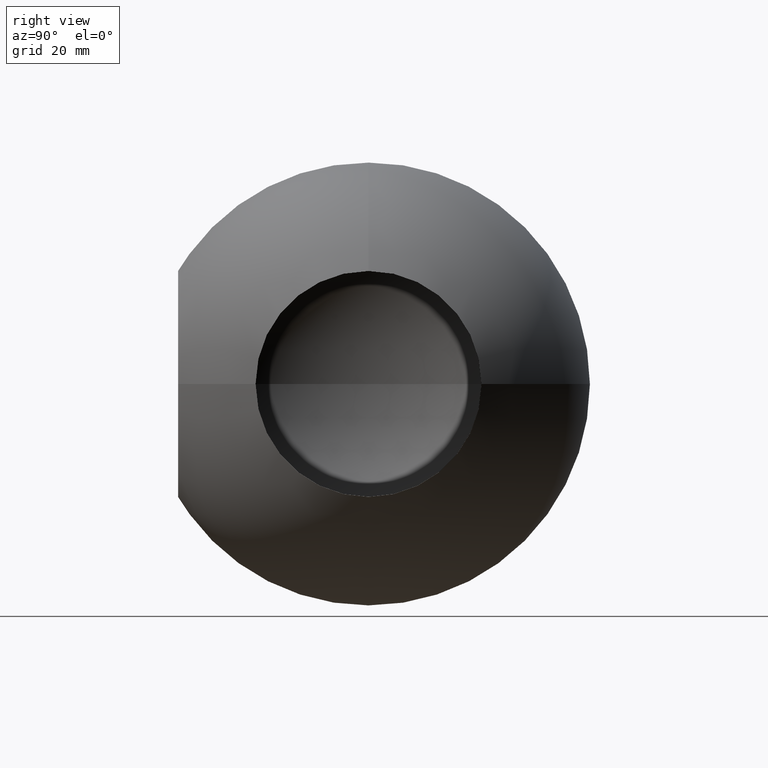
[diagram: clean part render]
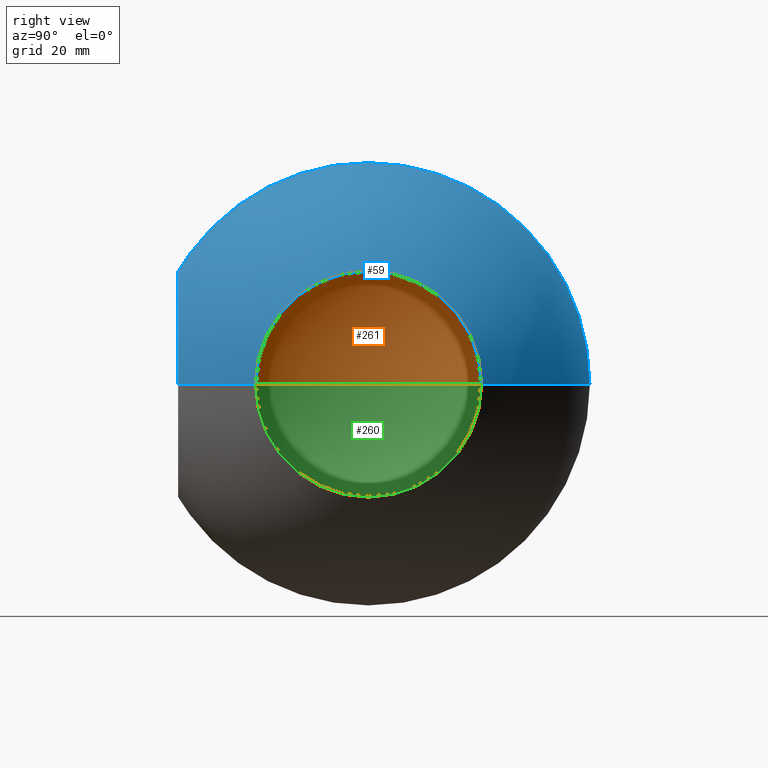
[diagram: same view with three faces highlighted in distinct colors, each labeled with its STEP entity id]
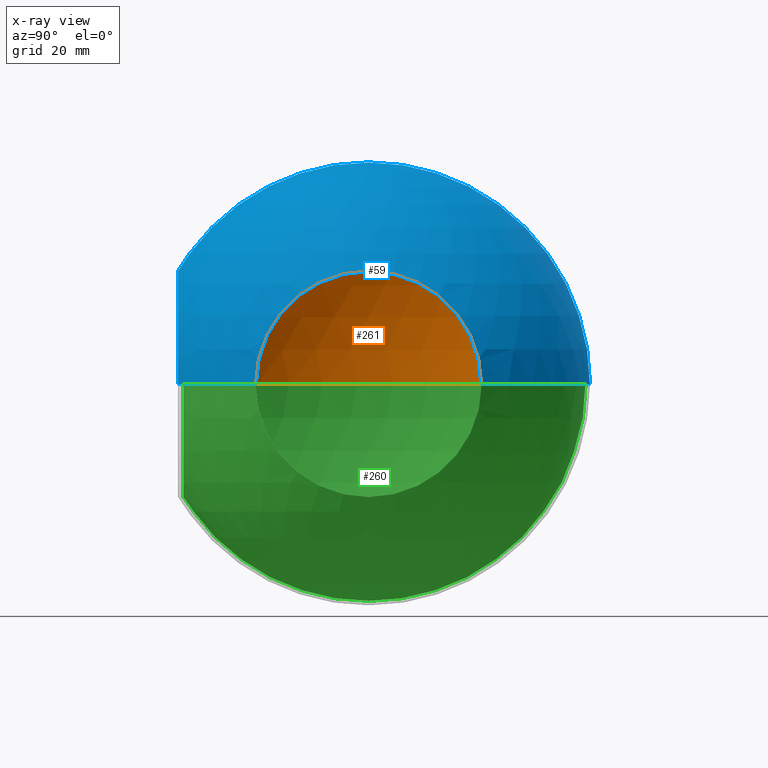
[diagram: x-ray of the same camera — body ghosted, the three highlighted faces saturated]
A machine part, right view with three faces highlighted in distinct colors.
The next image is the same camera in x-ray (body ghosted, the three faces saturated) — at least one of them is partly hidden behind the body in this view.
Their STEP definitions:

[orange] entity #261 — the highlighted spherical surface has radius 49 mm.
#3 = DIRECTION ( 'NONE',  ( 0.0000000000000000000, 1.000000000000000000, 0.0000000000000000000 ) ) ;
#7 = VERTEX_POINT ( 'NONE', #237 ) ;
#11 = DIRECTION ( 'NONE',  ( 0.0000000000000000000, -8.881784197001251300E-016, 1.000000000000000000 ) ) ;
#23 = DIRECTION ( 'NONE',  ( 0.0000000000000000000, 0.0000000000000000000, 1.000000000000000000 ) ) ;
#24 = CARTESIAN_POINT ( 'NONE',  ( 0.0000000000000000000, 0.0000000000000000000, 0.0000000000000000000 ) ) ;
#31 = DIRECTION ( 'NONE',  ( 1.000000000000000000, 0.0000000000000000000, 0.0000000000000000000 ) ) ;
#33 = EDGE_CURVE ( 'NONE', #275, #208, #129, .T. ) ;
#41 = AXIS2_PLACEMENT_3D ( 'NONE', #24, #53, #308 ) ;
#45 = VERTEX_POINT ( 'NONE', #243 ) ;
#53 = DIRECTION ( 'NONE',  ( 0.0000000000000000000, 0.0000000000000000000, 1.000000000000000000 ) ) ;
#60 = CARTESIAN_POINT ( 'NONE',  ( 0.0000000000000000000, 0.0000000000000000000, 0.0000000000000000000 ) ) ;
#67 = AXIS2_PLACEMENT_3D ( 'NONE', #346, #182, #11 ) ;
#69 = ORIENTED_EDGE ( 'NONE', *, *, #210, .T. ) ;
#70 = ORIENTED_EDGE ( 'NONE', *, *, #158, .F. ) ;
#76 = CIRCLE ( 'NONE', #67, 25.50000000000000000 ) ;
#77 = CARTESIAN_POINT ( 'NONE',  ( 0.0000000000000000000, -41.84196458102798700, 0.0000000000000000000 ) ) ;
#82 = DIRECTION ( 'NONE',  ( 0.0000000000000000000, 1.000000000000000000, 0.0000000000000000000 ) ) ;
#84 = DIRECTION ( 'NONE',  ( 1.000000000000000000, 0.0000000000000000000, 0.0000000000000000000 ) ) ;
#88 = CIRCLE ( 'NONE', #150, 49.00000000000000000 ) ;
#89 = CARTESIAN_POINT ( 'NONE',  ( 3.000384657911015500E-015, 49.00000000000000000, 0.0000000000000000000 ) ) ;
#95 = AXIS2_PLACEMENT_3D ( 'NONE', #112, #3, #23 ) ;
#97 = ORIENTED_EDGE ( 'NONE', *, *, #324, .T. ) ;
#99 = AXIS2_PLACEMENT_3D ( 'NONE', #60, #204, #31 ) ;
#102 = CARTESIAN_POINT ( 'NONE',  ( 25.50000000000000000, -41.84196458102798700, 0.0000000000000000000 ) ) ;
#104 = CARTESIAN_POINT ( 'NONE',  ( 41.84196458102798700, -1.075493846998870700E-014, 25.50000000000000000 ) ) ;
#112 = CARTESIAN_POINT ( 'NONE',  ( 0.0000000000000000000, -41.84196458102798700, 0.0000000000000000000 ) ) ;
#116 = AXIS2_PLACEMENT_3D ( 'NONE', #199, #304, #84 ) ;
#122 = VERTEX_POINT ( 'NONE', #104 ) ;
#129 = CIRCLE ( 'NONE', #217, 25.50000000000000000 ) ;
#133 = CARTESIAN_POINT ( 'NONE',  ( 3.122849337825750200E-015, -41.84196458102798700, 25.50000000000000000 ) ) ;
#146 = EDGE_CURVE ( 'NONE', #170, #122, #76, .T. ) ;
#148 = FACE_OUTER_BOUND ( 'NONE', #264, .T. ) ;
#150 = AXIS2_PLACEMENT_3D ( 'NONE', #168, #313, #253 ) ;
#151 = CIRCLE ( 'NONE', #116, 49.00000000000000000 ) ;
#158 = EDGE_CURVE ( 'NONE', #208, #7, #350, .T. ) ;
#168 = CARTESIAN_POINT ( 'NONE',  ( 0.0000000000000000000, 0.0000000000000000000, 0.0000000000000000000 ) ) ;
#170 = VERTEX_POINT ( 'NONE', #278 ) ;
#182 = DIRECTION ( 'NONE',  ( 1.000000000000000000, -0.0000000000000000000, -0.0000000000000000000 ) ) ;
#184 = SPHERICAL_SURFACE ( 'NONE', #99, 49.00000000000000000 ) ;
#192 = DIRECTION ( 'NONE',  ( 1.000000000000000000, -0.0000000000000000000, -0.0000000000000000000 ) ) ;
#196 = ORIENTED_EDGE ( 'NONE', *, *, #321, .F. ) ;
#199 = CARTESIAN_POINT ( 'NONE',  ( 0.0000000000000000000, 0.0000000000000000000, 0.0000000000000000000 ) ) ;
#204 = DIRECTION ( 'NONE',  ( 0.0000000000000000000, 0.0000000000000000000, -1.000000000000000000 ) ) ;
#208 = VERTEX_POINT ( 'NONE', #102 ) ;
#210 = EDGE_CURVE ( 'NONE', #45, #213, #88, .T. ) ;
#213 = VERTEX_POINT ( 'NONE', #89 ) ;
#217 = AXIS2_PLACEMENT_3D ( 'NONE', #77, #82, #218 ) ;
#218 = DIRECTION ( 'NONE',  ( 0.0000000000000000000, 0.0000000000000000000, 1.000000000000000000 ) ) ;
#225 = EDGE_CURVE ( 'NONE', #45, #275, #354, .T. ) ;
#237 = CARTESIAN_POINT ( 'NONE',  ( 41.84196458102798700, -25.50000000000000400, 0.0000000000000000000 ) ) ;
#243 = CARTESIAN_POINT ( 'NONE',  ( -25.50000000000000000, -41.84196458102798700, -3.122849337825750200E-015 ) ) ;
#250 = ORIENTED_EDGE ( 'NONE', *, *, #146, .T. ) ;
#253 = DIRECTION ( 'NONE',  ( -1.000000000000000000, 0.0000000000000000000, -1.224646799147353200E-016 ) ) ;
#255 = AXIS2_PLACEMENT_3D ( 'NONE', #277, #192, #306 ) ;
#261 = ADVANCED_FACE ( 'NONE', ( #148 ), #184, .F. ) ;
#264 = EDGE_LOOP ( 'NONE', ( #325, #69, #196, #250, #97, #70, #274 ) ) ;
#274 = ORIENTED_EDGE ( 'NONE', *, *, #33, .F. ) ;
#275 = VERTEX_POINT ( 'NONE', #133 ) ;
#277 = CARTESIAN_POINT ( 'NONE',  ( 41.84196458102798700, -1.387778780781445700E-014, 0.0000000000000000000 ) ) ;
#278 = CARTESIAN_POINT ( 'NONE',  ( 41.84196458102798700, 25.49999999999999300, 0.0000000000000000000 ) ) ;
#289 = CIRCLE ( 'NONE', #255, 25.50000000000000000 ) ;
#304 = DIRECTION ( 'NONE',  ( 0.0000000000000000000, 0.0000000000000000000, 1.000000000000000000 ) ) ;
#306 = DIRECTION ( 'NONE',  ( 0.0000000000000000000, 0.0000000000000000000, 1.000000000000000000 ) ) ;
#308 = DIRECTION ( 'NONE',  ( 1.000000000000000000, 0.0000000000000000000, 0.0000000000000000000 ) ) ;
#313 = DIRECTION ( 'NONE',  ( 1.224646799147353200E-016, 0.0000000000000000000, -1.000000000000000000 ) ) ;
#321 = EDGE_CURVE ( 'NONE', #170, #213, #151, .T. ) ;
#324 = EDGE_CURVE ( 'NONE', #122, #7, #289, .T. ) ;
#325 = ORIENTED_EDGE ( 'NONE', *, *, #225, .F. ) ;
#346 = CARTESIAN_POINT ( 'NONE',  ( 41.84196458102798700, -1.387778780781445700E-014, 0.0000000000000000000 ) ) ;
#350 = CIRCLE ( 'NONE', #41, 49.00000000000000000 ) ;
#354 = CIRCLE ( 'NONE', #95, 25.50000000000000000 ) ;

[blue] entity #59 — the highlighted spherical surface has radius 50 mm.
#9 = DIRECTION ( 'NONE',  ( 0.0000000000000000000, -8.881784197001251300E-016, 1.000000000000000000 ) ) ;
#10 = ORIENTED_EDGE ( 'NONE', *, *, #311, .F. ) ;
#17 = CIRCLE ( 'NONE', #314, 25.50000000000000000 ) ;
#21 = AXIS2_PLACEMENT_3D ( 'NONE', #107, #136, #248 ) ;
#22 = DIRECTION ( 'NONE',  ( -1.000000000000000000, 0.0000000000000000000, -1.224646799147353200E-016 ) ) ;
#32 = VERTEX_POINT ( 'NONE', #214 ) ;
#38 = CARTESIAN_POINT ( 'NONE',  ( 43.00872004605578500, -1.387778780781445700E-014, 0.0000000000000000000 ) ) ;
#42 = VERTEX_POINT ( 'NONE', #296 ) ;
#46 = EDGE_CURVE ( 'NONE', #32, #42, #165, .T. ) ;
#56 = DIRECTION ( 'NONE',  ( 0.0000000000000000000, 0.0000000000000000000, 1.000000000000000000 ) ) ;
#59 = ADVANCED_FACE ( 'NONE', ( #230 ), #206, .T. ) ;
#63 = AXIS2_PLACEMENT_3D ( 'NONE', #149, #90, #283 ) ;
#73 = DIRECTION ( 'NONE',  ( 0.0000000000000000000, 0.0000000000000000000, 1.000000000000000000 ) ) ;
#75 = ORIENTED_EDGE ( 'NONE', *, *, #125, .T. ) ;
#83 = AXIS2_PLACEMENT_3D ( 'NONE', #38, #240, #73 ) ;
#90 = DIRECTION ( 'NONE',  ( 0.0000000000000000000, 0.0000000000000000000, 1.000000000000000000 ) ) ;
#93 = ORIENTED_EDGE ( 'NONE', *, *, #46, .T. ) ;
#94 = VERTEX_POINT ( 'NONE', #353 ) ;
#101 = VERTEX_POINT ( 'NONE', #191 ) ;
#105 = CIRCLE ( 'NONE', #63, 50.00000000000000000 ) ;
#107 = CARTESIAN_POINT ( 'NONE',  ( 0.0000000000000000000, -43.00872004605578500, 0.0000000000000000000 ) ) ;
#109 = DIRECTION ( 'NONE',  ( 1.000000000000000000, 0.0000000000000000000, 0.0000000000000000000 ) ) ;
#120 = ORIENTED_EDGE ( 'NONE', *, *, #339, .F. ) ;
#125 = EDGE_CURVE ( 'NONE', #287, #256, #134, .T. ) ;
#128 = CIRCLE ( 'NONE', #319, 25.50000000000000000 ) ;
#134 = CIRCLE ( 'NONE', #21, 25.50000000000000000 ) ;
#136 = DIRECTION ( 'NONE',  ( 0.0000000000000000000, 1.000000000000000000, 0.0000000000000000000 ) ) ;
#149 = CARTESIAN_POINT ( 'NONE',  ( 0.0000000000000000000, 0.0000000000000000000, 0.0000000000000000000 ) ) ;
#157 = AXIS2_PLACEMENT_3D ( 'NONE', #329, #271, #220 ) ;
#164 = DIRECTION ( 'NONE',  ( 1.000000000000000000, -0.0000000000000000000, -0.0000000000000000000 ) ) ;
#165 = CIRCLE ( 'NONE', #157, 50.00000000000000000 ) ;
#166 = DIRECTION ( 'NONE',  ( 0.0000000000000000000, 0.0000000000000000000, -1.000000000000000000 ) ) ;
#172 = CARTESIAN_POINT ( 'NONE',  ( 3.122849337825750200E-015, -43.00872004605578500, 25.50000000000000000 ) ) ;
#173 = DIRECTION ( 'NONE',  ( 0.0000000000000000000, 1.000000000000000000, 0.0000000000000000000 ) ) ;
#177 = AXIS2_PLACEMENT_3D ( 'NONE', #273, #166, #109 ) ;
#188 = ORIENTED_EDGE ( 'NONE', *, *, #290, .F. ) ;
#191 = CARTESIAN_POINT ( 'NONE',  ( 43.00872004605578500, -1.075493846998870700E-014, 25.50000000000000000 ) ) ;
#195 = DIRECTION ( 'NONE',  ( 1.224646799147353200E-016, 0.0000000000000000000, -1.000000000000000000 ) ) ;
#200 = CARTESIAN_POINT ( 'NONE',  ( 0.0000000000000000000, -43.00872004605578500, 0.0000000000000000000 ) ) ;
#206 = SPHERICAL_SURFACE ( 'NONE', #177, 50.00000000000000000 ) ;
#214 = CARTESIAN_POINT ( 'NONE',  ( 43.00872004605578500, 25.49999999999998900, 0.0000000000000000000 ) ) ;
#220 = DIRECTION ( 'NONE',  ( 1.000000000000000000, 0.0000000000000000000, 0.0000000000000000000 ) ) ;
#223 = CARTESIAN_POINT ( 'NONE',  ( 0.0000000000000000000, 0.0000000000000000000, 0.0000000000000000000 ) ) ;
#230 = FACE_OUTER_BOUND ( 'NONE', #323, .T. ) ;
#234 = CIRCLE ( 'NONE', #242, 50.00000000000000000 ) ;
#236 = EDGE_CURVE ( 'NONE', #94, #287, #17, .T. ) ;
#240 = DIRECTION ( 'NONE',  ( 1.000000000000000000, -0.0000000000000000000, -0.0000000000000000000 ) ) ;
#242 = AXIS2_PLACEMENT_3D ( 'NONE', #223, #195, #22 ) ;
#245 = ORIENTED_EDGE ( 'NONE', *, *, #257, .T. ) ;
#248 = DIRECTION ( 'NONE',  ( 0.0000000000000000000, 0.0000000000000000000, 1.000000000000000000 ) ) ;
#256 = VERTEX_POINT ( 'NONE', #282 ) ;
#257 = EDGE_CURVE ( 'NONE', #256, #330, #105, .T. ) ;
#269 = CARTESIAN_POINT ( 'NONE',  ( 43.00872004605578500, -1.387778780781445700E-014, 0.0000000000000000000 ) ) ;
#271 = DIRECTION ( 'NONE',  ( 0.0000000000000000000, 0.0000000000000000000, 1.000000000000000000 ) ) ;
#273 = CARTESIAN_POINT ( 'NONE',  ( 0.0000000000000000000, 0.0000000000000000000, 0.0000000000000000000 ) ) ;
#282 = CARTESIAN_POINT ( 'NONE',  ( 25.49999999999999600, -43.00872004605578500, 0.0000000000000000000 ) ) ;
#283 = DIRECTION ( 'NONE',  ( 1.000000000000000000, 0.0000000000000000000, 0.0000000000000000000 ) ) ;
#287 = VERTEX_POINT ( 'NONE', #172 ) ;
#290 = EDGE_CURVE ( 'NONE', #32, #101, #128, .T. ) ;
#296 = CARTESIAN_POINT ( 'NONE',  ( 3.061616997868383000E-015, 50.00000000000000000, 0.0000000000000000000 ) ) ;
#299 = CARTESIAN_POINT ( 'NONE',  ( 43.00872004605578500, -25.50000000000000400, 0.0000000000000000000 ) ) ;
#300 = ORIENTED_EDGE ( 'NONE', *, *, #236, .T. ) ;
#311 = EDGE_CURVE ( 'NONE', #101, #330, #322, .T. ) ;
#314 = AXIS2_PLACEMENT_3D ( 'NONE', #200, #173, #56 ) ;
#319 = AXIS2_PLACEMENT_3D ( 'NONE', #269, #164, #9 ) ;
#322 = CIRCLE ( 'NONE', #83, 25.50000000000000000 ) ;
#323 = EDGE_LOOP ( 'NONE', ( #120, #300, #75, #245, #10, #188, #93 ) ) ;
#329 = CARTESIAN_POINT ( 'NONE',  ( 0.0000000000000000000, 0.0000000000000000000, 0.0000000000000000000 ) ) ;
#330 = VERTEX_POINT ( 'NONE', #299 ) ;
#339 = EDGE_CURVE ( 'NONE', #94, #42, #234, .T. ) ;
#353 = CARTESIAN_POINT ( 'NONE',  ( -25.49999999999999600, -43.00872004605578500, -3.122849337825750200E-015 ) ) ;

[green] entity #260 — the highlighted spherical surface has radius 49 mm.
#1 = ORIENTED_EDGE ( 'NONE', *, *, #179, .T. ) ;
#4 = ORIENTED_EDGE ( 'NONE', *, *, #158, .T. ) ;
#5 = AXIS2_PLACEMENT_3D ( 'NONE', #328, #26, #28 ) ;
#7 = VERTEX_POINT ( 'NONE', #237 ) ;
#8 = EDGE_CURVE ( 'NONE', #208, #318, #205, .T. ) ;
#12 = CARTESIAN_POINT ( 'NONE',  ( 41.84196458102798700, -1.387778780781445700E-014, -25.50000000000000000 ) ) ;
#15 = DIRECTION ( 'NONE',  ( 0.0000000000000000000, 0.0000000000000000000, 1.000000000000000000 ) ) ;
#24 = CARTESIAN_POINT ( 'NONE',  ( 0.0000000000000000000, 0.0000000000000000000, 0.0000000000000000000 ) ) ;
#26 = DIRECTION ( 'NONE',  ( 0.0000000000000000000, 0.0000000000000000000, -1.000000000000000000 ) ) ;
#27 = AXIS2_PLACEMENT_3D ( 'NONE', #130, #160, #351 ) ;
#28 = DIRECTION ( 'NONE',  ( 1.000000000000000000, 0.0000000000000000000, 0.0000000000000000000 ) ) ;
#29 = EDGE_CURVE ( 'NONE', #318, #45, #340, .T. ) ;
#40 = CARTESIAN_POINT ( 'NONE',  ( 41.84196458102798700, -1.387778780781445700E-014, 0.0000000000000000000 ) ) ;
#41 = AXIS2_PLACEMENT_3D ( 'NONE', #24, #53, #308 ) ;
#45 = VERTEX_POINT ( 'NONE', #243 ) ;
#47 = CARTESIAN_POINT ( 'NONE',  ( 41.84196458102798700, -1.387778780781445700E-014, 0.0000000000000000000 ) ) ;
#53 = DIRECTION ( 'NONE',  ( 0.0000000000000000000, 0.0000000000000000000, 1.000000000000000000 ) ) ;
#64 = EDGE_CURVE ( 'NONE', #7, #190, #197, .T. ) ;
#80 = FACE_OUTER_BOUND ( 'NONE', #215, .T. ) ;
#84 = DIRECTION ( 'NONE',  ( 1.000000000000000000, 0.0000000000000000000, 0.0000000000000000000 ) ) ;
#88 = CIRCLE ( 'NONE', #150, 49.00000000000000000 ) ;
#89 = CARTESIAN_POINT ( 'NONE',  ( 3.000384657911015500E-015, 49.00000000000000000, 0.0000000000000000000 ) ) ;
#102 = CARTESIAN_POINT ( 'NONE',  ( 25.50000000000000000, -41.84196458102798700, 0.0000000000000000000 ) ) ;
#113 = ORIENTED_EDGE ( 'NONE', *, *, #8, .F. ) ;
#116 = AXIS2_PLACEMENT_3D ( 'NONE', #199, #304, #84 ) ;
#130 = CARTESIAN_POINT ( 'NONE',  ( 0.0000000000000000000, -41.84196458102798700, 0.0000000000000000000 ) ) ;
#138 = DIRECTION ( 'NONE',  ( 1.000000000000000000, -0.0000000000000000000, -0.0000000000000000000 ) ) ;
#150 = AXIS2_PLACEMENT_3D ( 'NONE', #168, #313, #253 ) ;
#151 = CIRCLE ( 'NONE', #116, 49.00000000000000000 ) ;
#158 = EDGE_CURVE ( 'NONE', #208, #7, #350, .T. ) ;
#159 = DIRECTION ( 'NONE',  ( 0.0000000000000000000, 0.0000000000000000000, 1.000000000000000000 ) ) ;
#160 = DIRECTION ( 'NONE',  ( 0.0000000000000000000, 1.000000000000000000, 0.0000000000000000000 ) ) ;
#162 = AXIS2_PLACEMENT_3D ( 'NONE', #239, #266, #15 ) ;
#168 = CARTESIAN_POINT ( 'NONE',  ( 0.0000000000000000000, 0.0000000000000000000, 0.0000000000000000000 ) ) ;
#170 = VERTEX_POINT ( 'NONE', #278 ) ;
#179 = EDGE_CURVE ( 'NONE', #190, #170, #189, .T. ) ;
#189 = CIRCLE ( 'NONE', #207, 25.50000000000000000 ) ;
#190 = VERTEX_POINT ( 'NONE', #12 ) ;
#197 = CIRCLE ( 'NONE', #233, 25.50000000000000000 ) ;
#199 = CARTESIAN_POINT ( 'NONE',  ( 0.0000000000000000000, 0.0000000000000000000, 0.0000000000000000000 ) ) ;
#205 = CIRCLE ( 'NONE', #27, 25.50000000000000000 ) ;
#207 = AXIS2_PLACEMENT_3D ( 'NONE', #40, #326, #159 ) ;
#208 = VERTEX_POINT ( 'NONE', #102 ) ;
#210 = EDGE_CURVE ( 'NONE', #45, #213, #88, .T. ) ;
#213 = VERTEX_POINT ( 'NONE', #89 ) ;
#215 = EDGE_LOOP ( 'NONE', ( #293, #286, #113, #4, #222, #1, #317 ) ) ;
#222 = ORIENTED_EDGE ( 'NONE', *, *, #64, .T. ) ;
#233 = AXIS2_PLACEMENT_3D ( 'NONE', #47, #138, #297 ) ;
#237 = CARTESIAN_POINT ( 'NONE',  ( 41.84196458102798700, -25.50000000000000400, 0.0000000000000000000 ) ) ;
#239 = CARTESIAN_POINT ( 'NONE',  ( 0.0000000000000000000, -41.84196458102798700, 0.0000000000000000000 ) ) ;
#243 = CARTESIAN_POINT ( 'NONE',  ( -25.50000000000000000, -41.84196458102798700, -3.122849337825750200E-015 ) ) ;
#253 = DIRECTION ( 'NONE',  ( -1.000000000000000000, 0.0000000000000000000, -1.224646799147353200E-016 ) ) ;
#260 = ADVANCED_FACE ( 'NONE', ( #80 ), #298, .F. ) ;
#266 = DIRECTION ( 'NONE',  ( 0.0000000000000000000, 1.000000000000000000, 0.0000000000000000000 ) ) ;
#278 = CARTESIAN_POINT ( 'NONE',  ( 41.84196458102798700, 25.49999999999999300, 0.0000000000000000000 ) ) ;
#286 = ORIENTED_EDGE ( 'NONE', *, *, #29, .F. ) ;
#293 = ORIENTED_EDGE ( 'NONE', *, *, #210, .F. ) ;
#297 = DIRECTION ( 'NONE',  ( 0.0000000000000000000, 0.0000000000000000000, 1.000000000000000000 ) ) ;
#298 = SPHERICAL_SURFACE ( 'NONE', #5, 49.00000000000000000 ) ;
#304 = DIRECTION ( 'NONE',  ( 0.0000000000000000000, 0.0000000000000000000, 1.000000000000000000 ) ) ;
#308 = DIRECTION ( 'NONE',  ( 1.000000000000000000, 0.0000000000000000000, 0.0000000000000000000 ) ) ;
#313 = DIRECTION ( 'NONE',  ( 1.224646799147353200E-016, 0.0000000000000000000, -1.000000000000000000 ) ) ;
#316 = CARTESIAN_POINT ( 'NONE',  ( 0.0000000000000000000, -41.84196458102798700, -25.50000000000000000 ) ) ;
#317 = ORIENTED_EDGE ( 'NONE', *, *, #321, .T. ) ;
#318 = VERTEX_POINT ( 'NONE', #316 ) ;
#321 = EDGE_CURVE ( 'NONE', #170, #213, #151, .T. ) ;
#326 = DIRECTION ( 'NONE',  ( 1.000000000000000000, -0.0000000000000000000, -0.0000000000000000000 ) ) ;
#328 = CARTESIAN_POINT ( 'NONE',  ( 0.0000000000000000000, 0.0000000000000000000, 0.0000000000000000000 ) ) ;
#340 = CIRCLE ( 'NONE', #162, 25.50000000000000000 ) ;
#350 = CIRCLE ( 'NONE', #41, 49.00000000000000000 ) ;
#351 = DIRECTION ( 'NONE',  ( 0.0000000000000000000, 0.0000000000000000000, 1.000000000000000000 ) ) ;